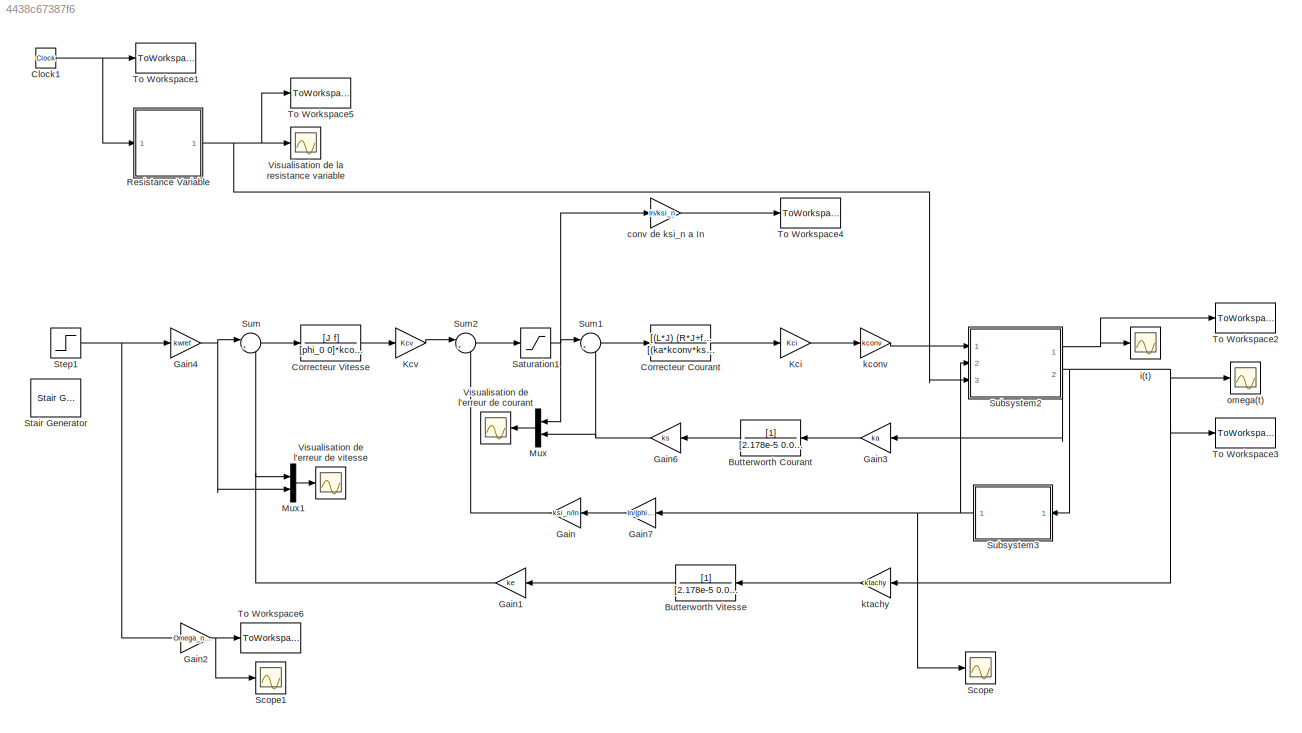
MODEL slx_4438c67387f6
KIND model
CONFIG AbsTol = auto
CONFIG EnableMultiTasking = off
CONFIG FixedStep = auto
CONFIG MaxStep = 1/(100*fn)
CONFIG MinStep = 1/(1000*fn)
CONFIG RelTol = 1e-3
CONFIG SampleTimeConstraint = Unconstrained
CONFIG Solver = VariableStepAuto
CONFIG SolverName = VariableStepAuto
CONFIG StartTime = 0.0
CONFIG StopTime = Tsim
BLOCK [TransferFcn] Butterworth Courant 
  Denominator = [2.178e-5 0.0066 1]
BLOCK [TransferFcn] Butterworth Vitesse
  Denominator = [2.178e-5 0.0066 1]
BLOCK [Clock] Clock1
BLOCK [TransferFcn] Correcteur Courant
  Denominator = [(ka*kconv*ks*J) (f*ka*kconv*ks) 0]
  Numerator = [(L*J) (R*J+f*L) (phi_0^2+f*R)]
BLOCK [TransferFcn] Correcteur Vitesse
  Denominator = [phi_0 0]*kcourant*ktachy*ke
  Numerator = [J f]
BLOCK [Gain] Gain
  Gain = ksi_n/In
  OutDataTypeStr = Inherit: Inherit via internal rule
  ParamDataTypeStr = Inherit: Inherit via internal rule
  SaturateOnIntegerOverflow = off
BLOCK [Gain] Gain1
  Gain = ke
  OutDataTypeStr = Inherit: Inherit via internal rule
  ParamDataTypeStr = Inherit: Inherit via internal rule
  SaturateOnIntegerOverflow = off
BLOCK [Gain] Gain2
  Gain = Omega_n/Nn
  OutDataTypeStr = Inherit: Inherit via internal rule
  ParamDataTypeStr = Inherit: Inherit via internal rule
  SaturateOnIntegerOverflow = off
BLOCK [Gain] Gain3
  Gain = ka
  OutDataTypeStr = Inherit: Inherit via internal rule
  ParamDataTypeStr = Inherit: Inherit via internal rule
  SaturateOnIntegerOverflow = off
BLOCK [Gain] Gain4
  Gain = kwref
  OutDataTypeStr = Inherit: Inherit via internal rule
  ParamDataTypeStr = Inherit: Inherit via internal rule
  SaturateOnIntegerOverflow = off
BLOCK [Gain] Gain6
  Gain = ks
  OutDataTypeStr = Inherit: Inherit via internal rule
  ParamDataTypeStr = Inherit: Inherit via internal rule
  SaturateOnIntegerOverflow = off
BLOCK [Gain] Gain7
  Gain = In/(phi_0*In-f*Omega_n)
  OutDataTypeStr = Inherit: Inherit via internal rule
  ParamDataTypeStr = Inherit: Inherit via internal rule
  SaturateOnIntegerOverflow = off
BLOCK [Gain] Kci
  Gain = Kci
  OutDataTypeStr = Inherit: Inherit via internal rule
  ParamDataTypeStr = Inherit: Inherit via internal rule
  SaturateOnIntegerOverflow = off
BLOCK [Gain] Kcv
  Gain = Kcv
  OutDataTypeStr = Inherit: Inherit via internal rule
  ParamDataTypeStr = Inherit: Inherit via internal rule
  SaturateOnIntegerOverflow = off
BLOCK [Mux] Mux
  DisplayOption = bar
  Inputs = 2
  Ports = [2, 1]
BLOCK [Mux] Mux1
  DisplayOption = bar
  Inputs = 2
  Ports = [2, 1]
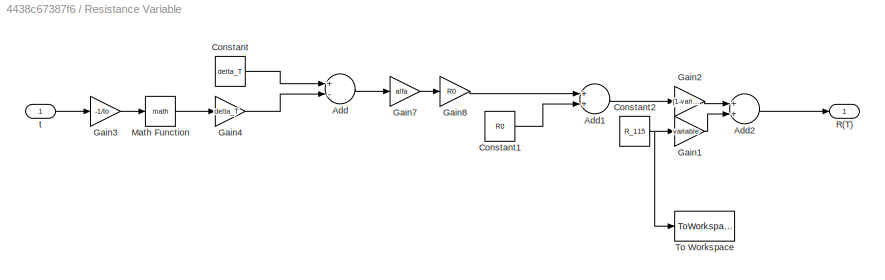
BLOCK [SubSystem] Resistance Variable
  Ports = [1, 1]
  RequestExecContextInheritance = off
BLOCK [Sum] Resistance Variable/Add
  InputSameDT = off
  Inputs = +-
  OutDataTypeStr = Inherit: Inherit via internal rule
  Ports = [2, 1]
  SaturateOnIntegerOverflow = off
BLOCK [Sum] Resistance Variable/Add1
  InputSameDT = off
  OutDataTypeStr = Inherit: Inherit via internal rule
  Ports = [2, 1]
  SaturateOnIntegerOverflow = off
BLOCK [Sum] Resistance Variable/Add2
  InputSameDT = off
  OutDataTypeStr = Inherit: Inherit via internal rule
  Ports = [2, 1]
  SaturateOnIntegerOverflow = off
BLOCK [Constant] Resistance Variable/Constant
  Value = delta_T
BLOCK [Constant] Resistance Variable/Constant1
  Value = R0
BLOCK [Constant] Resistance Variable/Constant2
  Value = R_115
BLOCK [Gain] Resistance Variable/Gain1
  Gain = variable
  OutDataTypeStr = Inherit: Inherit via internal rule
  ParamDataTypeStr = Inherit: Inherit via internal rule
  SaturateOnIntegerOverflow = off
BLOCK [Gain] Resistance Variable/Gain2
  Gain = (1-variable)
  OutDataTypeStr = Inherit: Inherit via internal rule
  ParamDataTypeStr = Inherit: Inherit via internal rule
  SaturateOnIntegerOverflow = off
BLOCK [Gain] Resistance Variable/Gain3
  Gain = -1/to
  OutDataTypeStr = Inherit: Inherit via internal rule
  ParamDataTypeStr = Inherit: Inherit via internal rule
  SaturateOnIntegerOverflow = off
BLOCK [Gain] Resistance Variable/Gain4
  Gain = delta_T
  OutDataTypeStr = Inherit: Inherit via internal rule
  ParamDataTypeStr = Inherit: Inherit via internal rule
  SaturateOnIntegerOverflow = off
BLOCK [Gain] Resistance Variable/Gain7
  Gain = alfa
  OutDataTypeStr = Inherit: Inherit via internal rule
  ParamDataTypeStr = Inherit: Inherit via internal rule
  SaturateOnIntegerOverflow = off
BLOCK [Gain] Resistance Variable/Gain8
  Gain = R0
  OutDataTypeStr = Inherit: Inherit via internal rule
  ParamDataTypeStr = Inherit: Inherit via internal rule
  SaturateOnIntegerOverflow = off
BLOCK [Math] Resistance Variable/Math Function
  Ports = [1, 1]
BLOCK [Outport] Resistance Variable/R(T)
  IconDisplay = Port number
BLOCK [ToWorkspace] Resistance Variable/To Workspace
  FixptAsFi = on
  MaxDataPoints = inf
  Ports = [1]
  SampleTime = -1
  Save2DSignal = 2-D array (concatenate along first dimension)
  VariableName = R_ref
BLOCK [Inport] Resistance Variable/t 
  IconDisplay = Port number
BLOCK [Saturate] Saturation1
  InputPortMap = u0
  LowerLimit = -ksi_n
  Ports = [1, 1]
  UpperLimit = ksi_n
BLOCK [Scope] Scope
  Floating = off
  NumInputPorts = 1
  Ports = [1]
  ScopeSpecificationString = Simulink.scopes.TimeScopeBlockCfg('CurrentConfiguration', extmgr.ConfigurationSet(extmgr.Configuration('Core','General UI',true),extmgr.Configuration('Core','Source UI',true),extmgr.Configuration('Sources','WiredSimulink',true),extmgr.Configuration('Visuals','Time Domain',true,'SerializedDisplays',{struct('MinYLimReal','-440.70371','MaxYLimReal','3966.33336','YLabelReal','','MinYLimMag',' 0.00000'...<+1419ch>
BLOCK [Scope] Scope1
  Floating = off
  NumInputPorts = 1
  Ports = [1]
  ScopeSpecificationString = Simulink.scopes.TimeScopeBlockCfg('CurrentConfiguration', extmgr.ConfigurationSet(extmgr.Configuration('Core','General UI',true),extmgr.Configuration('Core','Source UI',true),extmgr.Configuration('Sources','WiredSimulink',true,'DataLoggingVariableName','ScopeData1'),extmgr.Configuration('Visuals','Time Domain',true,'SerializedDisplays',{struct('MinYLimReal','-10.99557','MaxYLimReal','98.96017','YL...<+1370ch>
BLOCK [Reference] Stair Generator  REF=powerlib_meascontrol/Pulse & Signal
Generators/Stair
Generator
  Ports = [0, 1]
  SourceBlock = powerlib_meascontrol/Pulse & Signal\nGenerators/Stair\nGenerator
  SourceProductBaseCode = PS
  SourceProductName = Simscape Power Systems
  SourceType = Stair Generator
BLOCK [Step] Step1
  After = Nn
  SampleTime = 0
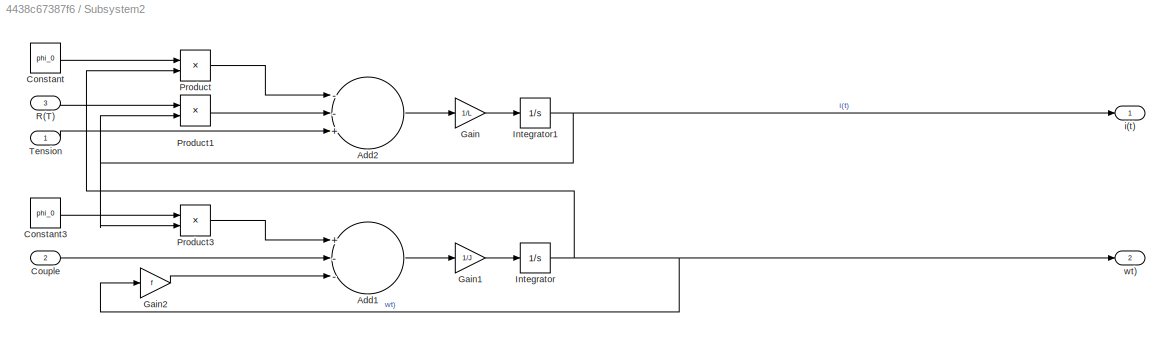
BLOCK [SubSystem] Subsystem2
  Ports = [3, 2]
  RequestExecContextInheritance = off
BLOCK [Sum] Subsystem2/Add1
  InputSameDT = off
  Inputs = +--
  OutDataTypeStr = Inherit: Inherit via internal rule
  Ports = [3, 1]
  SaturateOnIntegerOverflow = off
BLOCK [Sum] Subsystem2/Add2
  InputSameDT = off
  Inputs = --+
  OutDataTypeStr = Inherit: Inherit via internal rule
  Ports = [3, 1]
  SaturateOnIntegerOverflow = off
BLOCK [Constant] Subsystem2/Constant
  Value = phi_0
BLOCK [Constant] Subsystem2/Constant3
  Value = phi_0
BLOCK [Inport] Subsystem2/Couple
  IconDisplay = Port number
  Port = 2
BLOCK [Gain] Subsystem2/Gain
  Gain = 1/L
  OutDataTypeStr = Inherit: Inherit via internal rule
  ParamDataTypeStr = Inherit: Inherit via internal rule
  SaturateOnIntegerOverflow = off
BLOCK [Gain] Subsystem2/Gain1
  Gain = 1/J
  OutDataTypeStr = Inherit: Inherit via internal rule
  ParamDataTypeStr = Inherit: Inherit via internal rule
  SaturateOnIntegerOverflow = off
BLOCK [Gain] Subsystem2/Gain2
  Gain = f
  OutDataTypeStr = Inherit: Inherit via internal rule
  ParamDataTypeStr = Inherit: Inherit via internal rule
  SaturateOnIntegerOverflow = off
BLOCK [Integrator] Subsystem2/Integrator
  Ports = [1, 1]
BLOCK [Integrator] Subsystem2/Integrator1
  Ports = [1, 1]
BLOCK [Product] Subsystem2/Product
  InputSameDT = off
  OutDataTypeStr = Inherit: Inherit via internal rule
  Ports = [2, 1]
  RndMeth = Floor
  SaturateOnIntegerOverflow = off
BLOCK [Product] Subsystem2/Product1
  InputSameDT = off
  OutDataTypeStr = Inherit: Inherit via internal rule
  Ports = [2, 1]
  RndMeth = Floor
  SaturateOnIntegerOverflow = off
BLOCK [Product] Subsystem2/Product3
  InputSameDT = off
  OutDataTypeStr = Inherit: Inherit via internal rule
  Ports = [2, 1]
  RndMeth = Floor
  SaturateOnIntegerOverflow = off
BLOCK [Inport] Subsystem2/R(T) 
  IconDisplay = Port number
  Port = 3
BLOCK [Inport] Subsystem2/Tension
  IconDisplay = Port number
BLOCK [Outport] Subsystem2/i(t)
  IconDisplay = Port number
BLOCK [Outport] Subsystem2/wt)
  IconDisplay = Port number
  Port = 2
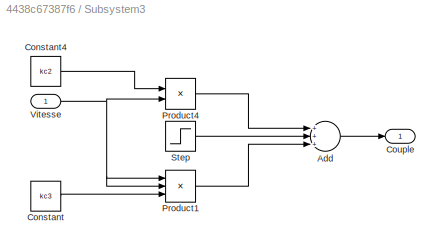
BLOCK [SubSystem] Subsystem3
  Ports = [1, 1]
  RequestExecContextInheritance = off
BLOCK [Sum] Subsystem3/Add
  InputSameDT = off
  Inputs = +++
  OutDataTypeStr = Inherit: Inherit via internal rule
  Ports = [3, 1]
  SaturateOnIntegerOverflow = off
BLOCK [Constant] Subsystem3/Constant
  Value = kc3
BLOCK [Constant] Subsystem3/Constant4
  Value = kc2
BLOCK [Outport] Subsystem3/Couple 
  IconDisplay = Port number
BLOCK [Product] Subsystem3/Product1
  InputSameDT = off
  Inputs = 3
  OutDataTypeStr = Inherit: Inherit via internal rule
  Ports = [3, 1]
  RndMeth = Floor
  SaturateOnIntegerOverflow = off
BLOCK [Product] Subsystem3/Product4
  InputSameDT = off
  OutDataTypeStr = Inherit: Inherit via internal rule
  Ports = [2, 1]
  RndMeth = Floor
  SaturateOnIntegerOverflow = off
BLOCK [Step] Subsystem3/Step
  After = kc1
  SampleTime = 0
  Time = 5
BLOCK [Inport] Subsystem3/Vitesse 
  IconDisplay = Port number
BLOCK [Sum] Sum
  IconShape = round
  InputSameDT = off
  Inputs = |+-
  OutDataTypeStr = Inherit: Inherit via internal rule
  Ports = [2, 1]
  SaturateOnIntegerOverflow = off
BLOCK [Sum] Sum1
  IconShape = round
  InputSameDT = off
  Inputs = |+-
  OutDataTypeStr = Inherit: Inherit via internal rule
  Ports = [2, 1]
  SaturateOnIntegerOverflow = off
BLOCK [Sum] Sum2
  IconShape = round
  InputSameDT = off
  Inputs = |++
  OutDataTypeStr = Inherit: Inherit via internal rule
  Ports = [2, 1]
  SaturateOnIntegerOverflow = off
BLOCK [ToWorkspace] To Workspace1
  FixptAsFi = on
  MaxDataPoints = inf
  Ports = [1]
  SampleTime = -1
  Save2DSignal = 2-D array (concatenate along first dimension)
  VariableName = t
BLOCK [ToWorkspace] To Workspace2
  FixptAsFi = on
  MaxDataPoints = inf
  Ports = [1]
  SampleTime = -1
  Save2DSignal = 2-D array (concatenate along first dimension)
  VariableName = courant
BLOCK [ToWorkspace] To Workspace3
  FixptAsFi = on
  MaxDataPoints = inf
  Ports = [1]
  SampleTime = -1
  Save2DSignal = 2-D array (concatenate along first dimension)
  VariableName = vitesse
BLOCK [ToWorkspace] To Workspace4
  FixptAsFi = on
  MaxDataPoints = inf
  Ports = [1]
  SampleTime = -1
  Save2DSignal = 2-D array (concatenate along first dimension)
  VariableName = courant_ref
BLOCK [ToWorkspace] To Workspace5
  FixptAsFi = on
  MaxDataPoints = inf
  Ports = [1]
  SampleTime = -1
  Save2DSignal = 2-D array (concatenate along first dimension)
  VariableName = R_variable
BLOCK [ToWorkspace] To Workspace6
  FixptAsFi = on
  MaxDataPoints = inf
  Ports = [1]
  SampleTime = -1
  Save2DSignal = 2-D array (concatenate along first dimension)
  VariableName = vitesse_ref
BLOCK [Scope] Visualisation de l'erreur de courant 
  Floating = off
  NumInputPorts = 1
  Ports = [1]
  ScopeSpecificationString = Simulink.scopes.TimeScopeBlockCfg('CurrentConfiguration', extmgr.ConfigurationSet(extmgr.Configuration('Core','General UI',true),extmgr.Configuration('Core','Source UI',true),extmgr.Configuration('Sources','WiredSimulink',true,'DataLoggingVariableName','ScopeData1'),extmgr.Configuration('Visuals','Time Domain',true,'SerializedDisplays',{struct('MinYLimReal','-0.62825','MaxYLimReal','5.65429','YLab...<+1449ch>
BLOCK [Scope] Visualisation de l'erreur de vitesse 
  Floating = off
  NumInputPorts = 1
  Ports = [1]
  ScopeSpecificationString = Simulink.scopes.TimeScopeBlockCfg('CurrentConfiguration', extmgr.ConfigurationSet(extmgr.Configuration('Core','General UI',true),extmgr.Configuration('Core','Source UI',true),extmgr.Configuration('Sources','WiredSimulink',true,'DataLoggingVariableName','ScopeData2'),extmgr.Configuration('Visuals','Time Domain',true,'SerializedDisplays',{struct('MinYLimReal','-0.625','MaxYLimReal','5.625','YLabelRe...<+1460ch>
BLOCK [Scope] Visualisation de la resistance variable
  Floating = off
  NumInputPorts = 1
  Ports = [1]
  ScopeSpecificationString = Simulink.scopes.TimeScopeBlockCfg('CurrentConfiguration', extmgr.ConfigurationSet(extmgr.Configuration('Core','General UI',true),extmgr.Configuration('Core','Source UI',true),extmgr.Configuration('Sources','WiredSimulink',true,'DataLoggingVariableName','ScopeData3'),extmgr.Configuration('Visuals','Time Domain',true,'SerializedDisplays',{struct('MinYLimReal','0.071','MaxYLimReal','0.091','YLabelRea...<+1404ch>
BLOCK [Gain] conv de ksi_n a In
  Gain = In/ksi_n
  OutDataTypeStr = Inherit: Inherit via internal rule
  ParamDataTypeStr = Inherit: Inherit via internal rule
  SaturateOnIntegerOverflow = off
BLOCK [Scope] i(t) 
  Floating = off
  NumInputPorts = 1
  Ports = [1]
  ScopeSpecificationString = Simulink.scopes.TimeScopeBlockCfg('CurrentConfiguration', extmgr.ConfigurationSet(extmgr.Configuration('Core','General UI',true),extmgr.Configuration('Core','Source UI',true),extmgr.Configuration('Sources','WiredSimulink',true,'DataLoggingVariableName','ScopeData1'),extmgr.Configuration('Visuals','Time Domain',true,'SerializedDisplays',{struct('MinYLimReal','-70.36443','MaxYLimReal','633.2799','YL...<+1479ch>
BLOCK [Gain] kconv
  Gain = kconv
  OutDataTypeStr = Inherit: Inherit via internal rule
  ParamDataTypeStr = Inherit: Inherit via internal rule
  SaturateOnIntegerOverflow = off
BLOCK [Gain] ktachy
  Gain = ktachy
  OutDataTypeStr = Inherit: Inherit via internal rule
  ParamDataTypeStr = Inherit: Inherit via internal rule
  SaturateOnIntegerOverflow = off
BLOCK [Scope] omega(t)
  Floating = off
  NumInputPorts = 1
  Ports = [1]
  ScopeSpecificationString = Simulink.scopes.TimeScopeBlockCfg('CurrentConfiguration', extmgr.ConfigurationSet(extmgr.Configuration('Core','General UI',true),extmgr.Configuration('Core','Source UI',true),extmgr.Configuration('Sources','WiredSimulink',true,'DataLoggingVariableName','ScopeData2'),extmgr.Configuration('Visuals','Time Domain',true,'SerializedDisplays',{struct('MinYLimReal','-11.87701','MaxYLimReal','106.89313','Y...<+1483ch>
LINE Butterworth Courant :1 -> Gain6:1
LINE Butterworth Vitesse:1 -> Gain1:1
NET Clock1:1 -> Resistance Variable:1, To Workspace1:1
LINE Correcteur Courant:1 -> Kci:1
LINE Correcteur Vitesse:1 -> Kcv:1
NET Gain1:1 -> Mux1:1, Sum:2
NET Gain2:1 -> Scope1:1, To Workspace6:1
LINE Gain3:1 -> Butterworth Courant :1
NET Gain4:1 -> Mux1:2, Sum:1
NET Gain6:1 -> Mux:2, Sum1:2
LINE Gain7:1 -> Gain:1
LINE Gain:1 -> Sum2:2
LINE Kci:1 -> kconv:1
LINE Kcv:1 -> Sum2:1
LINE Mux1:1 -> Visualisation de l'erreur de vitesse :1
LINE Mux:1 -> Visualisation de l'erreur de courant :1
LINE Resistance Variable/Add1:1 -> Resistance Variable/Gain2:1
LINE Resistance Variable/Add2:1 -> Resistance Variable/R(T):1
LINE Resistance Variable/Add:1 -> Resistance Variable/Gain7:1
LINE Resistance Variable/Constant1:1 -> Resistance Variable/Add1:2
NET Resistance Variable/Constant2:1 -> Resistance Variable/Gain1:1, Resistance Variable/To Workspace:1
LINE Resistance Variable/Constant:1 -> Resistance Variable/Add:1
LINE Resistance Variable/Gain1:1 -> Resistance Variable/Add2:2
LINE Resistance Variable/Gain2:1 -> Resistance Variable/Add2:1
LINE Resistance Variable/Gain3:1 -> Resistance Variable/Math Function:1
LINE Resistance Variable/Gain4:1 -> Resistance Variable/Add:2
LINE Resistance Variable/Gain7:1 -> Resistance Variable/Gain8:1
LINE Resistance Variable/Gain8:1 -> Resistance Variable/Add1:1
LINE Resistance Variable/Math Function:1 -> Resistance Variable/Gain4:1
LINE Resistance Variable/t :1 -> Resistance Variable/Gain3:1
NET Resistance Variable:1 -> Subsystem2:3, To Workspace5:1, Visualisation de la resistance variable:1
NET Saturation1:1 -> Mux:1, Sum1:1, conv de ksi_n a In:1
NET Step1:1 -> Gain2:1, Gain4:1
LINE Subsystem2/Add1:1 -> Subsystem2/Gain1:1
LINE Subsystem2/Add2:1 -> Subsystem2/Gain:1
LINE Subsystem2/Constant3:1 -> Subsystem2/Product3:1
LINE Subsystem2/Constant:1 -> Subsystem2/Product:1
LINE Subsystem2/Couple:1 -> Subsystem2/Add1:2
LINE Subsystem2/Gain1:1 -> Subsystem2/Integrator:1
LINE Subsystem2/Gain2:1 -> Subsystem2/Add1:3
LINE Subsystem2/Gain:1 -> Subsystem2/Integrator1:1
NET Subsystem2/Integrator1:1 -> Subsystem2/Product1:2, Subsystem2/Product3:2, Subsystem2/i(t):1
NET Subsystem2/Integrator:1 -> Subsystem2/Gain2:1, Subsystem2/Product:2, Subsystem2/wt):1
LINE Subsystem2/Product1:1 -> Subsystem2/Add2:2
LINE Subsystem2/Product3:1 -> Subsystem2/Add1:1
LINE Subsystem2/Product:1 -> Subsystem2/Add2:1
LINE Subsystem2/R(T) :1 -> Subsystem2/Product1:1
LINE Subsystem2/Tension:1 -> Subsystem2/Add2:3
NET Subsystem2:1 -> Gain3:1, To Workspace2:1, i(t) :1
NET Subsystem2:2 -> Subsystem3:1, To Workspace3:1, ktachy:1, omega(t):1
LINE Subsystem3/Add:1 -> Subsystem3/Couple :1
LINE Subsystem3/Constant4:1 -> Subsystem3/Product4:1
LINE Subsystem3/Constant:1 -> Subsystem3/Product1:3
LINE Subsystem3/Product1:1 -> Subsystem3/Add:3
LINE Subsystem3/Product4:1 -> Subsystem3/Add:1
LINE Subsystem3/Step:1 -> Subsystem3/Add:2
NET Subsystem3/Vitesse :1 -> Subsystem3/Product1:1, Subsystem3/Product1:2, Subsystem3/Product4:2
NET Subsystem3:1 -> Gain7:1, Scope:1, Subsystem2:2
LINE Sum1:1 -> Correcteur Courant:1
LINE Sum2:1 -> Saturation1:1
LINE Sum:1 -> Correcteur Vitesse:1
LINE conv de ksi_n a In:1 -> To Workspace4:1
LINE kconv:1 -> Subsystem2:1
LINE ktachy:1 -> Butterworth Vitesse:1
note: NET lines group one-source signal fan-out (src -> all destinations, sorted); 1:1 wires keep LINE
